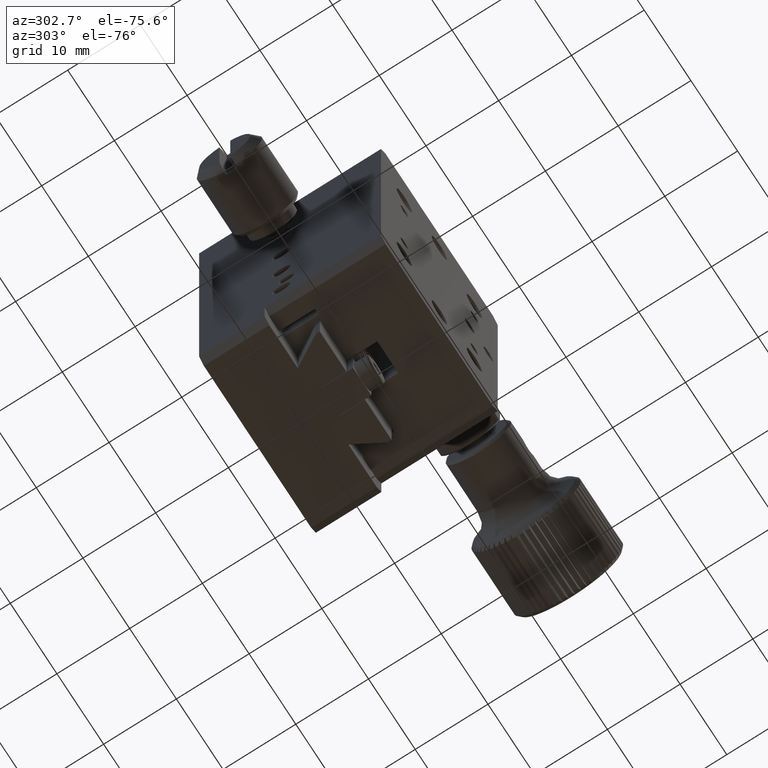
[diagram: clean part render]
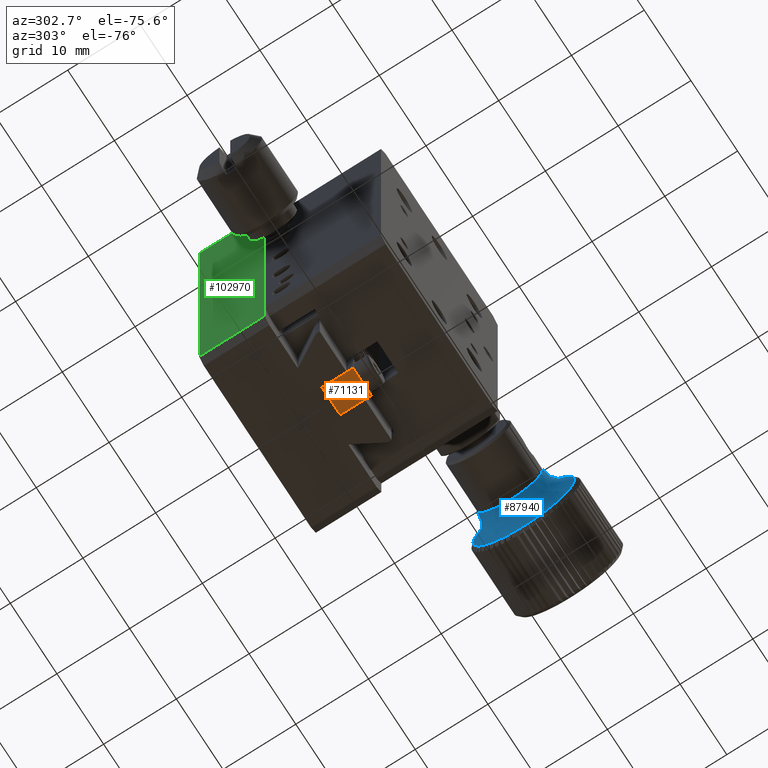
[diagram: same view with three faces highlighted in distinct colors, each labeled with its STEP entity id]
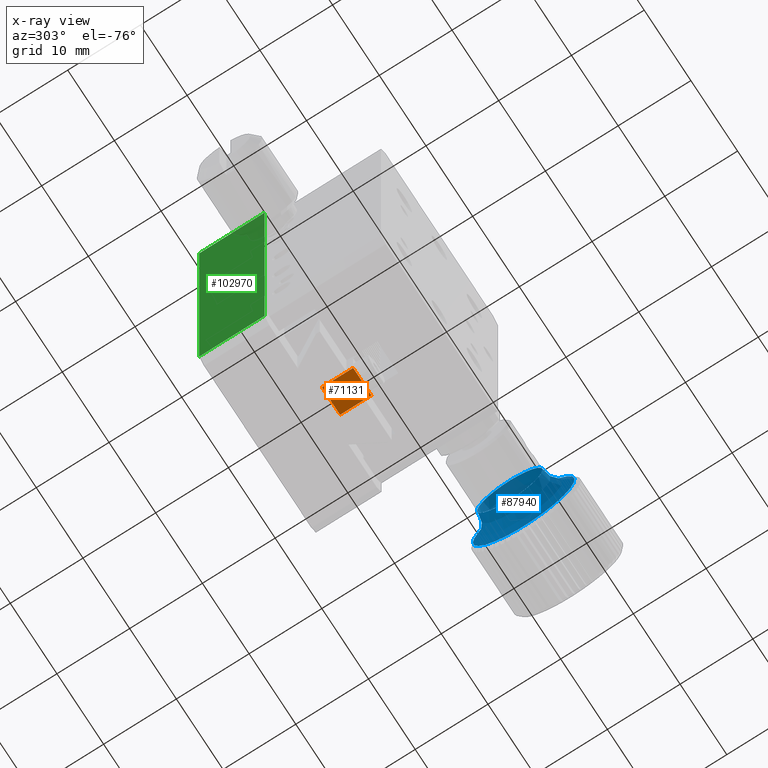
[diagram: x-ray of the same camera — body ghosted, the three highlighted faces saturated]
A machine part, auxiliary view with three faces highlighted in distinct colors.
The next image is the same camera in x-ray (body ghosted, the three faces saturated) — at least one of them is partly hidden behind the body in this view.
Their STEP definitions:

[orange] entity #71131 — the highlighted planar face has unit normal (0, -0, 1).
#532 = LINE ( 'NONE', #85200, #80291 ) ;
#639 = DIRECTION ( 'NONE',  ( 0.000000000000000000, -1.000000000000000000, -7.105427357601001859E-15 ) ) ;
#1268 = CARTESIAN_POINT ( 'NONE',  ( 3.999999999998947953, 11.52500000000035563, -0.3553833785426806502 ) ) ;
#3987 = ORIENTED_EDGE ( 'NONE', *, *, #83000, .F. ) ;
#9689 = DIRECTION ( 'NONE',  ( 0.000000000000000000, 1.000000000000000000, 0.000000000000000000 ) ) ;
#10601 = FACE_OUTER_BOUND ( 'NONE', #112899, .T. ) ;
#11964 = EDGE_CURVE ( 'NONE', #109948, #103709, #532, .T. ) ;
#16941 = VECTOR ( 'NONE', #122797, 1000.000000000000000 ) ;
#17606 = LINE ( 'NONE', #25709, #16941 ) ;
#18006 = EDGE_CURVE ( 'NONE', #109948, #34032, #17606, .T. ) ;
#21157 = CARTESIAN_POINT ( 'NONE',  ( 1.949999999998948130, 11.60000000000034248, -0.3553833785426723790 ) ) ;
#24121 = EDGE_CURVE ( 'NONE', #103709, #118368, #84183, .T. ) ;
#25709 = CARTESIAN_POINT ( 'NONE',  ( 3.999999999998947953, 15.90000000000035740, -0.3553833785426257497 ) ) ;
#34032 = VERTEX_POINT ( 'NONE', #91368 ) ;
#38481 = DIRECTION ( 'NONE',  ( -0.000000000000000000, -1.000000000000000000, 0.000000000000000000 ) ) ;
#46702 = PLANE ( 'NONE',  #120197 ) ;
#53084 = CARTESIAN_POINT ( 'NONE',  ( -1.950000000001052447, 11.60000000000035847, -0.3553833785426425695 ) ) ;
#60968 = ORIENTED_EDGE ( 'NONE', *, *, #11964, .F. ) ;
#62457 = CARTESIAN_POINT ( 'NONE',  ( -1.950000000001052447, 15.90000000000018510, -0.3553833785426257497 ) ) ;
#65714 = LINE ( 'NONE', #66960, #116448 ) ;
#66960 = CARTESIAN_POINT ( 'NONE',  ( 1.949999999998948130, 10.40000000000035740, -0.3553833785426722125 ) ) ;
#71131 = ADVANCED_FACE ( 'NONE', ( #10601 ), #46702, .F. ) ;
#78883 = VECTOR ( 'NONE', #83581, 1000.000000000000000 ) ;
#80291 = VECTOR ( 'NONE', #38481, 1000.000000000000000 ) ;
#83000 = EDGE_CURVE ( 'NONE', #118368, #34032, #65714, .T. ) ;
#83581 = DIRECTION ( 'NONE',  ( 1.000000000000000000, 2.480846702356937325E-29, -3.491481338843133355E-15 ) ) ;
#84183 = LINE ( 'NONE', #93535, #78883 ) ;
#85200 = CARTESIAN_POINT ( 'NONE',  ( -1.950000000001052447, 10.40000000000035740, -0.3553833785426257497 ) ) ;
#87744 = ORIENTED_EDGE ( 'NONE', *, *, #24121, .F. ) ;
#91368 = CARTESIAN_POINT ( 'NONE',  ( 1.949999999998948130, 15.90000000000035740, -0.3553833785426489533 ) ) ;
#93535 = CARTESIAN_POINT ( 'NONE',  ( 3.999999999998947953, 11.60000000000035847, -0.3553833785426800951 ) ) ;
#103709 = VERTEX_POINT ( 'NONE', #53084 ) ;
#109948 = VERTEX_POINT ( 'NONE', #62457 ) ;
#112899 = EDGE_LOOP ( 'NONE', ( #87744, #60968, #114535, #3987 ) ) ;
#114535 = ORIENTED_EDGE ( 'NONE', *, *, #18006, .T. ) ;
#116448 = VECTOR ( 'NONE', #9689, 1000.000000000000000 ) ;
#118368 = VERTEX_POINT ( 'NONE', #21157 ) ;
#120197 = AXIS2_PLACEMENT_3D ( 'NONE', #1268, #122044, #639 ) ;
#122044 = DIRECTION ( 'NONE',  ( 3.491481338843133355E-15, -7.105427357601001859E-15, 1.000000000000000000 ) ) ;
#122797 = DIRECTION ( 'NONE',  ( 1.000000000000000000, -2.438088387897967896E-29, -1.702508021759178625E-43 ) ) ;

[blue] entity #87940 — the highlighted face is a freeform B-spline surface patch.
#117 = CARTESIAN_POINT ( 'NONE',  ( 25.54196010846499121, 8.655333017410869800, 29.04204073403114705 ) ) ;
#732 = CARTESIAN_POINT ( 'NONE',  ( 28.50000000001708145, 6.213926417360786658, 17.80417911299664269 ) ) ;
#2668 = EDGE_LOOP ( 'NONE', ( #106555 ) ) ;
#4625 = EDGE_LOOP ( 'NONE', ( #58506 ) ) ;
#9454 = CARTESIAN_POINT ( 'NONE',  ( 28.50000000001688960, 9.186073582641482105, 31.48505412991781682 ) ) ;
#10075 = CARTESIAN_POINT ( 'NONE',  ( 28.50000000001801936, -7.466948599560388367, 20.77632627827733813 ) ) ;
#10692 = FACE_OUTER_BOUND ( 'NONE', #2668, .T. ) ;
#11315 = CARTESIAN_POINT ( 'NONE',  ( 25.54196010846511555, 6.744666982590994841, 20.24719250888331956 ) ) ;
#13396 = EDGE_CURVE ( 'NONE', #38405, #38405, #28583, .T. ) ;
#14224 =( BOUNDED_SURFACE ( )  B_SPLINE_SURFACE ( 3, 3, ( 
 ( #87240, #104062, #85396, #11315, #77292, #67351, #117 ),
 ( #38683, #49276, #113408, #67961, #95357, #66102, #94731 ),
 ( #29368, #38069, #76046, #48652, #115270, #57998, #95971 ),
 ( #105928, #29970, #10075, #732, #20641, #114023, #9454 ) ),
 .UNSPECIFIED., .F., .T., .F. ) 
 B_SPLINE_SURFACE_WITH_KNOTS ( ( 4, 4 ),
 ( 4, 3, 4 ),
 ( 0.000000000000000000, 1.000000000000000000 ),
 ( 0.000000000000000000, 0.5000000000000000000, 1.000000000000000000 ),
 .UNSPECIFIED. ) 
 GEOMETRIC_REPRESENTATION_ITEM ( )  RATIONAL_B_SPLINE_SURFACE ( (
 ( 1.000000000000000000, 0.3333333333333333148, 0.3333333333333333148, 1.000000000000000000, 0.3333333333333333148, 0.3333333333333333148, 1.000000000000000000),
 ( 0.8425084105497347986, 0.2808361368499115995, 0.2808361368499115995, 0.8425084105497347986, 0.2808361368499115995, 0.2808361368499115995, 0.8425084105497347986),
 ( 0.8425084105497347986, 0.2808361368499115995, 0.2808361368499115995, 0.8425084105497347986, 0.2808361368499115995, 0.2808361368499115995, 0.8425084105497347986),
 ( 1.000000000000000000, 0.3333333333333333148, 0.3333333333333333148, 1.000000000000000000, 0.3333333333333333148, 0.3333333333333333148, 1.000000000000000000) ) ) 
 REPRESENTATION_ITEM ( '' )  SURFACE ( )  );
#20641 = CARTESIAN_POINT ( 'NONE',  ( 28.50000000001614353, 19.89480143428196257, 14.83203194771594724 ) ) ;
#28583 = CIRCLE ( 'NONE', #98179, 7.000000000014045654 ) ;
#29368 = CARTESIAN_POINT ( 'NONE',  ( 28.24461294541088563, 8.865317297126473761, 30.00860413972763396 ) ) ;
#29970 = CARTESIAN_POINT ( 'NONE',  ( 28.50000000001782752, -4.494801434279693808, 34.45720129519851582 ) ) ;
#38069 = CARTESIAN_POINT ( 'NONE',  ( 28.24461294541161749, -1.862657739414338876, 32.33923873397835536 ) ) ;
#38405 = VERTEX_POINT ( 'NONE', #76383 ) ;
#38683 = CARTESIAN_POINT ( 'NONE',  ( 27.07428243613965435, 8.655333017410972829, 29.04204073403114705 ) ) ;
#39311 = FACE_OUTER_BOUND ( 'NONE', #4625, .T. ) ;
#48652 = CARTESIAN_POINT ( 'NONE',  ( 28.24461294541103129, 6.534682702875759475, 19.28062910318681844 ) ) ;
#49276 = CARTESIAN_POINT ( 'NONE',  ( 27.07428243614025476, -0.1395152077368518595, 30.95270676885101935 ) ) ;
#53266 = VERTEX_POINT ( 'NONE', #81281 ) ;
#57998 = CARTESIAN_POINT ( 'NONE',  ( 28.24461294541015732, 19.59329233366728573, 27.67796954547691968 ) ) ;
#58506 = ORIENTED_EDGE ( 'NONE', *, *, #13396, .F. ) ;
#59472 = CARTESIAN_POINT ( 'NONE',  ( 28.50000000000827782, 7.700000000001133493, 24.64461662145723153 ) ) ;
#66102 = CARTESIAN_POINT ( 'NONE',  ( 27.07428243613905749, 17.45018124255879854, 27.13137469921127121 ) ) ;
#67351 = CARTESIAN_POINT ( 'NONE',  ( 25.54196010846439435, 17.45018124255869552, 27.13137469921127121 ) ) ;
#67961 = CARTESIAN_POINT ( 'NONE',  ( 27.07428243613977514, 6.744666982591100535, 20.24719250888331601 ) ) ;
#69398 = DIRECTION ( 'NONE',  ( -1.000000000000000000, -6.816766128203799333E-14, 1.004398495345514949E-15 ) ) ;
#73922 = EDGE_CURVE ( 'NONE', #53266, #53266, #112465, .T. ) ;
#74684 = AXIS2_PLACEMENT_3D ( 'NONE', #78109, #69398, #116704 ) ;
#76046 = CARTESIAN_POINT ( 'NONE',  ( 28.24461294541176670, -4.193292333665053384, 21.61126369743753628 ) ) ;
#76383 = CARTESIAN_POINT ( 'NONE',  ( 28.50000000000818545, 9.186073582654330494, 31.48505412991653429 ) ) ;
#77292 = CARTESIAN_POINT ( 'NONE',  ( 25.54196010846451159, 15.53951520773882677, 18.33652647406344016 ) ) ;
#78109 = CARTESIAN_POINT ( 'NONE',  ( 25.54196010846505160, 7.700000000000931877, 24.64461662145723508 ) ) ;
#81281 = CARTESIAN_POINT ( 'NONE',  ( 25.54196010846499121, 8.655333017410869800, 29.04204073403114705 ) ) ;
#85396 = CARTESIAN_POINT ( 'NONE',  ( 25.54196010846570886, -2.050181242556837535, 22.15785854370319186 ) ) ;
#87240 = CARTESIAN_POINT ( 'NONE',  ( 25.54196010846499121, 8.655333017410869800, 29.04204073403114705 ) ) ;
#87940 = ADVANCED_FACE ( 'NONE', ( #39311, #10692 ), #14224, .F. ) ;
#89319 = DIRECTION ( 'NONE',  ( 1.000000000000000000, 6.816766128203799333E-14, -1.004398495345514949E-15 ) ) ;
#94731 = CARTESIAN_POINT ( 'NONE',  ( 27.07428243613965435, 8.655333017410972829, 29.04204073403114705 ) ) ;
#95357 = CARTESIAN_POINT ( 'NONE',  ( 27.07428243613917473, 15.53951520773894046, 18.33652647406344371 ) ) ;
#95971 = CARTESIAN_POINT ( 'NONE',  ( 28.24461294541088563, 8.865317297126473761, 30.00860413972763396 ) ) ;
#98050 = DIRECTION ( 'NONE',  ( -1.338215252893708829E-14, 0.2122962260928878131, 0.9772053583493682805 ) ) ;
#98179 = AXIS2_PLACEMENT_3D ( 'NONE', #59472, #89319, #98050 ) ;
#104062 = CARTESIAN_POINT ( 'NONE',  ( 25.54196010846559162, -0.1395152077369558874, 30.95270676885101935 ) ) ;
#105928 = CARTESIAN_POINT ( 'NONE',  ( 28.50000000001688960, 9.186073582641482105, 31.48505412991781682 ) ) ;
#106555 = ORIENTED_EDGE ( 'NONE', *, *, #73922, .F. ) ;
#112465 = CIRCLE ( 'NONE', #74684, 4.500000000000004441 ) ;
#113408 = CARTESIAN_POINT ( 'NONE',  ( 27.07428243614038266, -2.050181242556738503, 22.15785854370318830 ) ) ;
#114023 = CARTESIAN_POINT ( 'NONE',  ( 28.50000000001595524, 22.86694859956264381, 28.51290696463711072 ) ) ;
#115270 = CARTESIAN_POINT ( 'NONE',  ( 28.24461294541030298, 17.26265773941657145, 16.94999450893611126 ) ) ;
#116704 = DIRECTION ( 'NONE',  ( -1.310679959626919671E-14, 0.2122962260910969678, 0.9772053583497574136 ) ) ;

[green] entity #102970 — the highlighted planar face has unit normal (1, -0, 0).
#997 = EDGE_CURVE ( 'NONE', #75043, #86502, #35829, .T. ) ;
#11096 = CARTESIAN_POINT ( 'NONE',  ( -12.50000000000106581, 17.00000000000035527, 48.64461662145725285 ) ) ;
#17118 = DIRECTION ( 'NONE',  ( 0.000000000000000000, 0.000000000000000000, -1.000000000000000000 ) ) ;
#18386 = DIRECTION ( 'NONE',  ( -0.000000000000000000, -1.000000000000000000, -0.000000000000000000 ) ) ;
#23855 = VECTOR ( 'NONE', #25884, 1000.000000000000000 ) ;
#24604 = DIRECTION ( 'NONE',  ( 0.000000000000000000, 1.000000000000000000, 0.000000000000000000 ) ) ;
#25884 = DIRECTION ( 'NONE',  ( 0.000000000000000000, 0.000000000000000000, -1.000000000000000000 ) ) ;
#26549 = EDGE_CURVE ( 'NONE', #93313, #58656, #86725, .T. ) ;
#28829 = VECTOR ( 'NONE', #18386, 1000.000000000000000 ) ;
#35829 = LINE ( 'NONE', #109335, #23855 ) ;
#43856 = ORIENTED_EDGE ( 'NONE', *, *, #77310, .F. ) ;
#44485 = CARTESIAN_POINT ( 'NONE',  ( -12.50000000000106581, 17.00000000000035527, 0.6446166214572544018 ) ) ;
#49125 = VECTOR ( 'NONE', #60365, 1000.000000000000000 ) ;
#56294 = DIRECTION ( 'NONE',  ( 1.000000000000000000, -0.000000000000000000, 0.000000000000000000 ) ) ;
#58656 = VERTEX_POINT ( 'NONE', #107207 ) ;
#58742 = ORIENTED_EDGE ( 'NONE', *, *, #81259, .F. ) ;
#60365 = DIRECTION ( 'NONE',  ( 0.000000000000000000, -0.000000000000000000, -1.000000000000000000 ) ) ;
#61607 = CARTESIAN_POINT ( 'NONE',  ( -12.50000000000106581, 26.00000000000035527, 49.64461662145725285 ) ) ;
#66316 = LINE ( 'NONE', #74413, #28829 ) ;
#72495 = ORIENTED_EDGE ( 'NONE', *, *, #997, .F. ) ;
#74347 = CARTESIAN_POINT ( 'NONE',  ( -12.50000000000106581, 17.00000000000035527, 0.6446166214572519593 ) ) ;
#74413 = CARTESIAN_POINT ( 'NONE',  ( -12.50000000000106581, 17.00000000000035527, 48.64461662145725285 ) ) ;
#75043 = VERTEX_POINT ( 'NONE', #11096 ) ;
#76900 = EDGE_LOOP ( 'NONE', ( #58742, #72495, #43856, #109505 ) ) ;
#77310 = EDGE_CURVE ( 'NONE', #93313, #75043, #66316, .T. ) ;
#81259 = EDGE_CURVE ( 'NONE', #86502, #58656, #111123, .T. ) ;
#85875 = CARTESIAN_POINT ( 'NONE',  ( -12.50000000000106581, 26.00000000000035527, 48.64461662145725285 ) ) ;
#86502 = VERTEX_POINT ( 'NONE', #74347 ) ;
#86725 = LINE ( 'NONE', #61607, #49125 ) ;
#88535 = VECTOR ( 'NONE', #24604, 1000.000000000000000 ) ;
#92571 = AXIS2_PLACEMENT_3D ( 'NONE', #112965, #56294, #17118 ) ;
#93313 = VERTEX_POINT ( 'NONE', #85875 ) ;
#102970 = ADVANCED_FACE ( 'NONE', ( #121094 ), #103006, .F. ) ;
#103006 = PLANE ( 'NONE',  #92571 ) ;
#107207 = CARTESIAN_POINT ( 'NONE',  ( -12.50000000000106581, 26.00000000000035882, 0.6446166214572518482 ) ) ;
#109335 = CARTESIAN_POINT ( 'NONE',  ( -12.50000000000106581, 17.00000000000035527, 49.64461662145725285 ) ) ;
#109505 = ORIENTED_EDGE ( 'NONE', *, *, #26549, .T. ) ;
#111123 = LINE ( 'NONE', #44485, #88535 ) ;
#112965 = CARTESIAN_POINT ( 'NONE',  ( -12.50000000000106581, 17.00000000000035527, 49.64461662145725285 ) ) ;
#121094 = FACE_OUTER_BOUND ( 'NONE', #76900, .T. ) ;